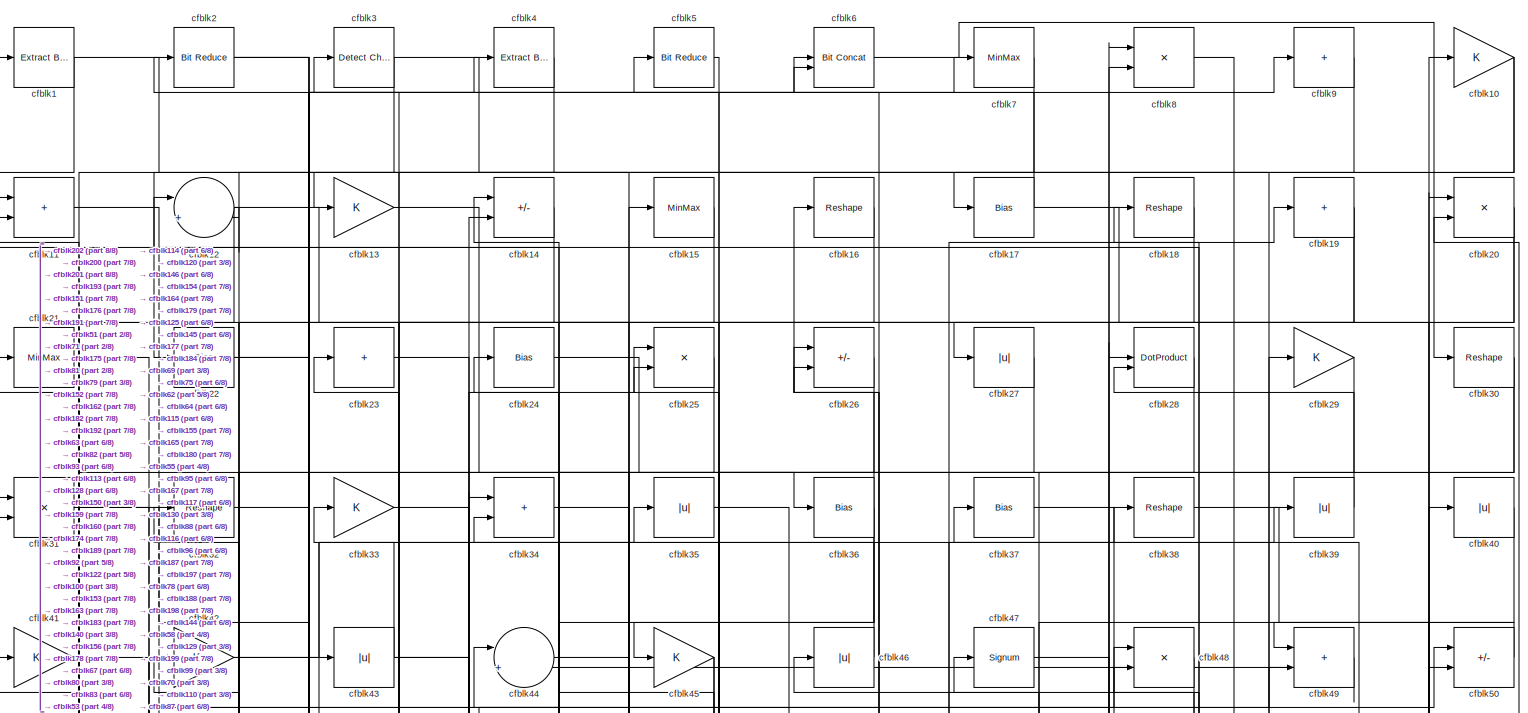
[diagram: root canvas - part 1/8, full width, top band]
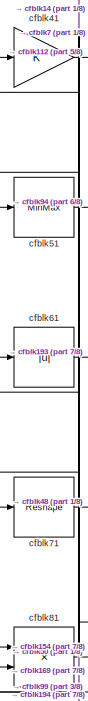
[diagram: root canvas - part 2/8, top left region]
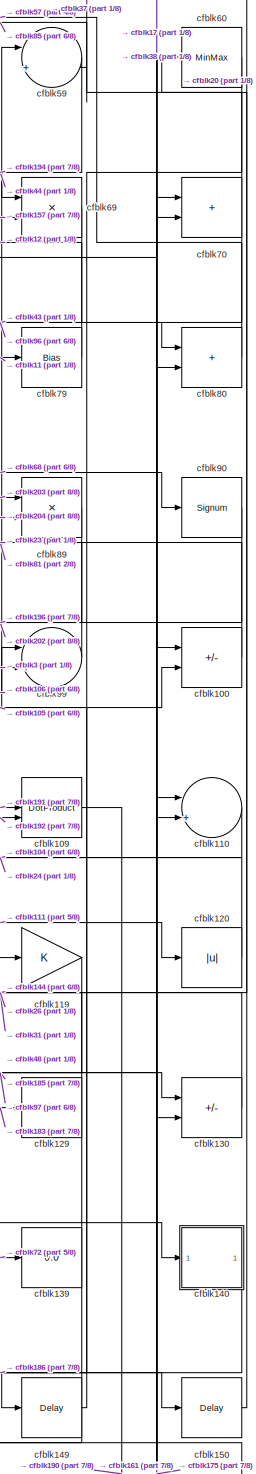
[diagram: root canvas - part 3/8, middle right region]
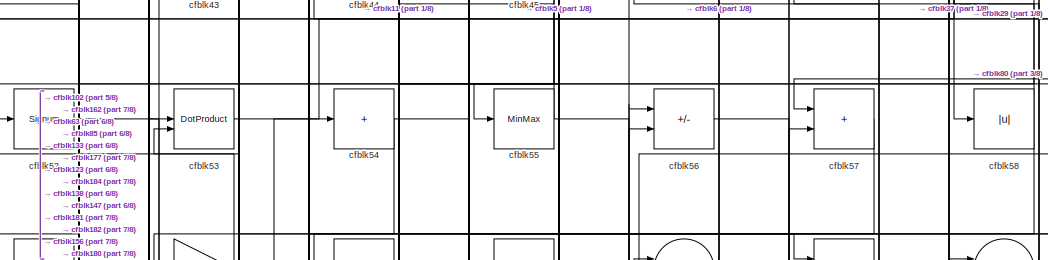
[diagram: root canvas - part 4/8, top center region]
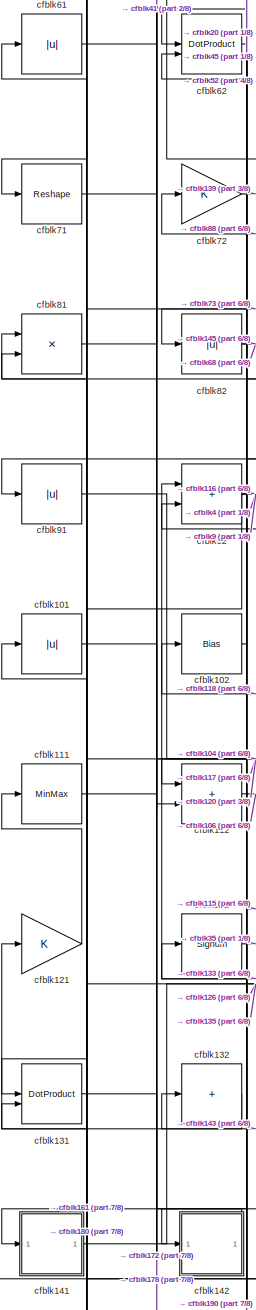
[diagram: root canvas - part 5/8, middle left region]
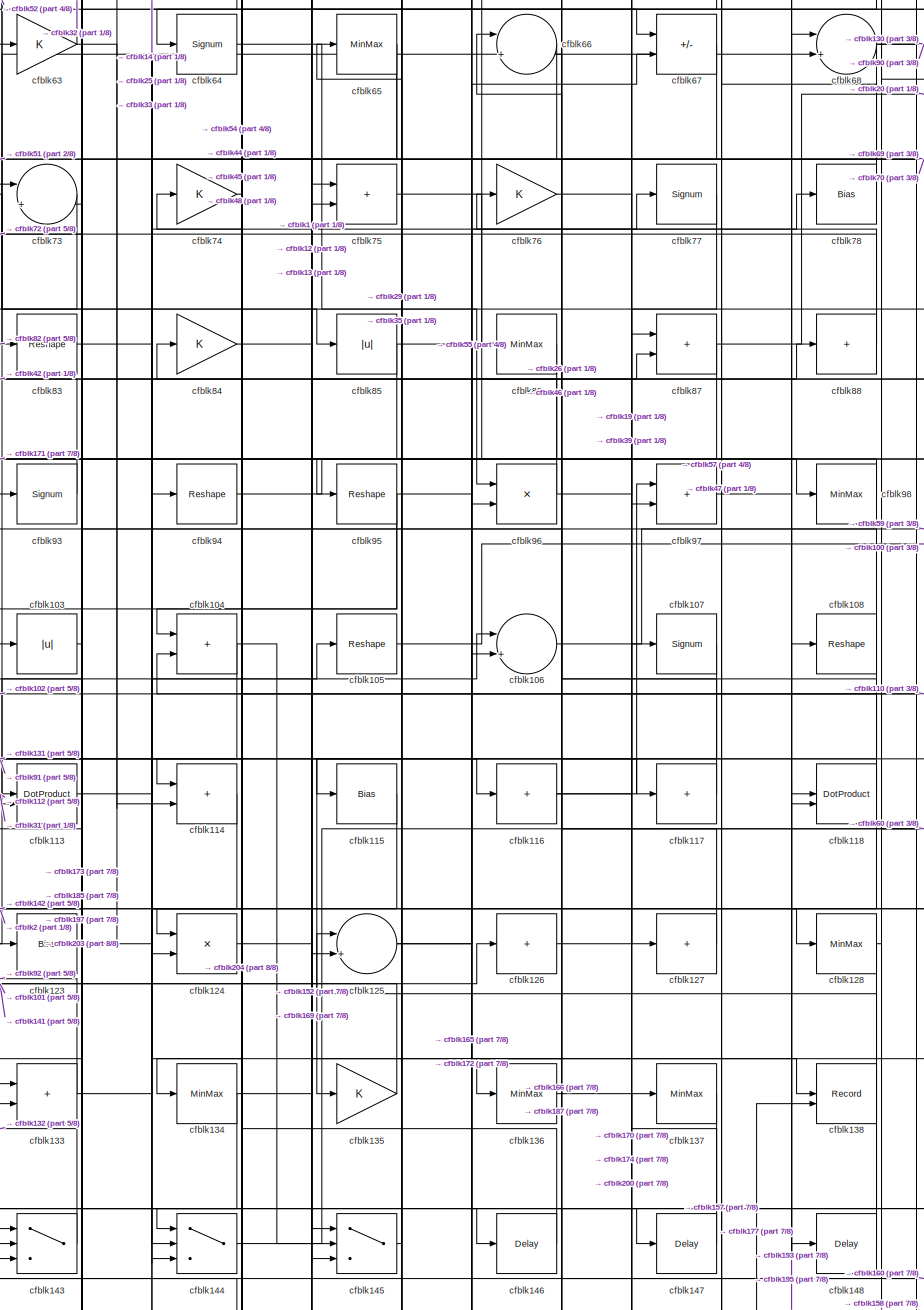
[diagram: root canvas - part 6/8, central region]
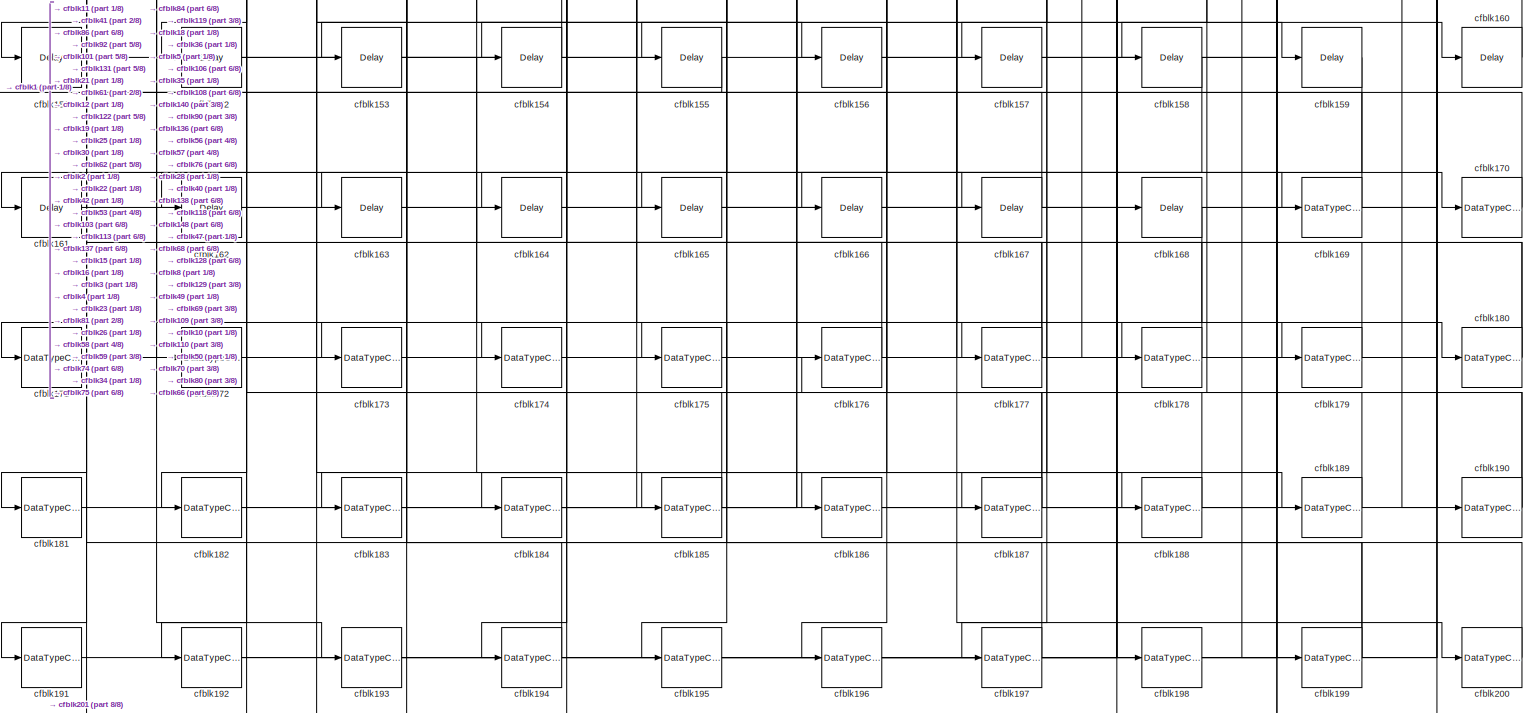
[diagram: root canvas - part 7/8, full width, bottom band]
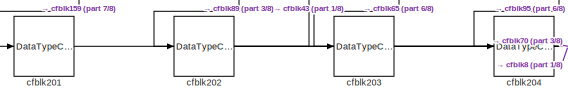
[diagram: root canvas - part 8/8, bottom left region]
MODEL slx_c1be3efe6a10
KIND model
CONFIG AbsTol = auto
CONFIG EnableMultiTasking = off
CONFIG FixedStep = auto
CONFIG MaxStep = auto
CONFIG MinStep = auto
CONFIG RelTol = 1e-3
CONFIG SampleTimeConstraint = Unconstrained
CONFIG SolverName = VariableStepAuto
CONFIG StartTime = 0.0
CONFIG StopTime = 10.0
BLOCK [Reference] cfblk1  REF=simulink/Logic and Bit
Operations/Extract Bits
  LibrarySourceBlock = hdlsllib/Logic and Bit\nOperations/Extract Bits
  SourceBlock = simulink/Logic and Bit\nOperations/Extract Bits
  SourceType = Extract Bits
BLOCK [Gain] cfblk10
BLOCK [Sum] cfblk100
  IconShape = rectangular
  Inputs = +-
BLOCK [Abs] cfblk101
  SaturateOnIntegerOverflow = off
BLOCK [Bias] cfblk102
  Bias = 0.0
  SaturateOnIntegerOverflow = off
BLOCK [Abs] cfblk103
  SaturateOnIntegerOverflow = off
BLOCK [Sum] cfblk104
  IconShape = rectangular
BLOCK [Reshape] cfblk105
BLOCK [Sum] cfblk106
  Inputs = |++
BLOCK [Signum] cfblk107
BLOCK [Reshape] cfblk108
BLOCK [DotProduct] cfblk109
  OutDataTypeStr = Inherit: Inherit via internal rule
BLOCK [Sum] cfblk11
  IconShape = rectangular
BLOCK [Sum] cfblk110
  Inputs = |++
BLOCK [MinMax] cfblk111
BLOCK [Sum] cfblk112
  IconShape = rectangular
BLOCK [DotProduct] cfblk113
  OutDataTypeStr = Inherit: Inherit via internal rule
BLOCK [Sum] cfblk114
  IconShape = rectangular
BLOCK [Bias] cfblk115
  Bias = 0.0
  SaturateOnIntegerOverflow = off
BLOCK [Sum] cfblk116
  IconShape = rectangular
  Inputs = +
BLOCK [Sum] cfblk117
  IconShape = rectangular
  Inputs = +
BLOCK [DotProduct] cfblk118
  OutDataTypeStr = Inherit: Inherit via internal rule
BLOCK [Gain] cfblk119
BLOCK [Sum] cfblk12
  Inputs = |++
BLOCK [Abs] cfblk120
  SaturateOnIntegerOverflow = off
BLOCK [Gain] cfblk121
BLOCK [Signum] cfblk122
BLOCK [Bias] cfblk123
  Bias = 0.0
  SaturateOnIntegerOverflow = off
BLOCK [Product] cfblk124
  Inputs = */
  RndMeth = Zero
  SaturateOnIntegerOverflow = on
BLOCK [Sum] cfblk125
  Inputs = |++
BLOCK [Sum] cfblk126
  IconShape = rectangular
  Inputs = +
BLOCK [Sum] cfblk127
  IconShape = rectangular
  Inputs = +
BLOCK [MinMax] cfblk128
BLOCK [Bias] cfblk129
  Bias = 0.0
  SaturateOnIntegerOverflow = off
BLOCK [Gain] cfblk13
BLOCK [Sum] cfblk130
  IconShape = rectangular
  Inputs = +-
BLOCK [DotProduct] cfblk131
  OutDataTypeStr = Inherit: Inherit via internal rule
BLOCK [Sum] cfblk132
  IconShape = rectangular
  Inputs = +
BLOCK [Sum] cfblk133
  IconShape = rectangular
BLOCK [MinMax] cfblk134
BLOCK [Gain] cfblk135
BLOCK [MinMax] cfblk136
BLOCK [MinMax] cfblk137
BLOCK [Record] cfblk138
  CompatibilityTag = XY
  FileSettingsInternal = {"entries":[{"content":{"excelSettings":{"content":{},"type":"Streamout.ExcelSettings"}},"type":"Streamout.FileSettingStorage","uuid":""}],"packageUris":["http:\/\/schema.mathworks.com\/mf0\/streamout_blocks\/R2020a"],"version":"1.0"}
  Layout = [1 1]
  SignalsInternal = {"entries":[{"content":{"signals":[{"content":{"blockPath":[],"dimensions":[1],"domain":"","lineColor":"#a2142f","plots":[1],"port":1,"signalID":5620,"signalName":"XY Graph:1"},"type":"RecordBlkView.Signal","uuid":""},{"content":{"blockPath":[],"dimensions":[1],"domain":"","lineColor":"#139fff","plots":[1],"port":2,"signalID":5623,"signalName":"XY Graph:2"},"type":"RecordBlkView.Signal","uuid":""}...<+146ch>
  VisualizationBindings = {"xyplotplugin":{"info":[{"series":[{"bindingParametersList":[{"parameter":"X-Axis","signalID":5620,"signalName":"XY Graph:1"},{"parameter":"Y-Axis","signalID":5623,"signalName":"XY Graph:2"}],"seriesID":47147}],"subplotID":1}]}}
  st = -1
BLOCK [Display] cfblk139
  Decimation = 1
BLOCK [Sum] cfblk14
  IconShape = rectangular
  Inputs = +-
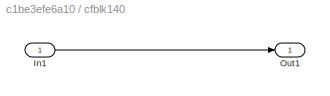
BLOCK [SubSystem] cfblk140
  LibrarySourceBlock = hdlsllib/Ports &\nSubsystems/Subsystem
BLOCK [Inport] cfblk140/In1
BLOCK [Outport] cfblk140/Out1
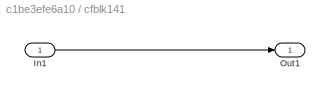
BLOCK [SubSystem] cfblk141
  LibrarySourceBlock = hdlsllib/Ports &\nSubsystems/Subsystem
BLOCK [Inport] cfblk141/In1
BLOCK [Outport] cfblk141/Out1
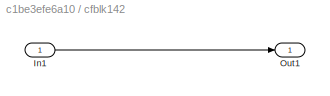
BLOCK [SubSystem] cfblk142
  LibrarySourceBlock = hdlsllib/Ports &\nSubsystems/Subsystem
BLOCK [Inport] cfblk142/In1
BLOCK [Outport] cfblk142/Out1
BLOCK [Switch] cfblk143
  InputSameDT = off
  SaturateOnIntegerOverflow = off
BLOCK [Switch] cfblk144
  InputSameDT = off
  SaturateOnIntegerOverflow = off
BLOCK [Switch] cfblk145
  InputSameDT = off
  SaturateOnIntegerOverflow = off
BLOCK [Delay] cfblk146
  InputPortMap = u0
  SampleTime = 1
BLOCK [Delay] cfblk147
  InputPortMap = u0
  SampleTime = 1
BLOCK [Delay] cfblk148
  InputPortMap = u0
  SampleTime = 1
BLOCK [Delay] cfblk149
  InputPortMap = u0
  SampleTime = 1
BLOCK [MinMax] cfblk15
BLOCK [Delay] cfblk150
  InputPortMap = u0
  SampleTime = 1
BLOCK [Delay] cfblk151
  InputPortMap = u0
  SampleTime = 1
BLOCK [Delay] cfblk152
  InputPortMap = u0
  SampleTime = 1
BLOCK [Delay] cfblk153
  InputPortMap = u0
  SampleTime = 1
BLOCK [Delay] cfblk154
  InputPortMap = u0
  SampleTime = 1
BLOCK [Delay] cfblk155
  InputPortMap = u0
  SampleTime = 1
BLOCK [Delay] cfblk156
  InputPortMap = u0
  SampleTime = 1
BLOCK [Delay] cfblk157
  InputPortMap = u0
  SampleTime = 1
BLOCK [Delay] cfblk158
  InputPortMap = u0
  SampleTime = 1
BLOCK [Delay] cfblk159
  InputPortMap = u0
  SampleTime = 1
BLOCK [Reshape] cfblk16
BLOCK [Delay] cfblk160
  InputPortMap = u0
  SampleTime = 1
BLOCK [Delay] cfblk161
  InputPortMap = u0
  SampleTime = 1
BLOCK [Delay] cfblk162
  InputPortMap = u0
  SampleTime = 1
BLOCK [Delay] cfblk163
  InputPortMap = u0
  SampleTime = 1
BLOCK [Delay] cfblk164
  InputPortMap = u0
  SampleTime = 1
BLOCK [Delay] cfblk165
  InputPortMap = u0
  SampleTime = 1
BLOCK [Delay] cfblk166
  InputPortMap = u0
  SampleTime = 1
BLOCK [Delay] cfblk167
  InputPortMap = u0
  SampleTime = 1
BLOCK [Delay] cfblk168
  InputPortMap = u0
  SampleTime = 1
BLOCK [DataTypeConversion] cfblk169
  OutDataTypeStr = uint8
  RndMeth = Floor
  SaturateOnIntegerOverflow = off
BLOCK [Bias] cfblk17
  Bias = 0.0
  SaturateOnIntegerOverflow = off
BLOCK [DataTypeConversion] cfblk170
  OutDataTypeStr = uint8
  RndMeth = Floor
  SaturateOnIntegerOverflow = off
BLOCK [DataTypeConversion] cfblk171
  OutDataTypeStr = uint8
  RndMeth = Floor
  SaturateOnIntegerOverflow = off
BLOCK [DataTypeConversion] cfblk172
  OutDataTypeStr = uint8
  RndMeth = Floor
  SaturateOnIntegerOverflow = off
BLOCK [DataTypeConversion] cfblk173
  OutDataTypeStr = uint8
  RndMeth = Floor
  SaturateOnIntegerOverflow = off
BLOCK [DataTypeConversion] cfblk174
  OutDataTypeStr = uint8
  RndMeth = Floor
  SaturateOnIntegerOverflow = off
BLOCK [DataTypeConversion] cfblk175
  OutDataTypeStr = uint8
  RndMeth = Floor
  SaturateOnIntegerOverflow = off
BLOCK [DataTypeConversion] cfblk176
  OutDataTypeStr = uint8
  RndMeth = Floor
  SaturateOnIntegerOverflow = off
BLOCK [DataTypeConversion] cfblk177
  RndMeth = Floor
  SaturateOnIntegerOverflow = off
BLOCK [DataTypeConversion] cfblk178
  OutDataTypeStr = uint8
  RndMeth = Floor
  SaturateOnIntegerOverflow = off
BLOCK [DataTypeConversion] cfblk179
  OutDataTypeStr = uint8
  RndMeth = Floor
  SaturateOnIntegerOverflow = off
BLOCK [Reshape] cfblk18
BLOCK [DataTypeConversion] cfblk180
  RndMeth = Floor
  SaturateOnIntegerOverflow = off
BLOCK [DataTypeConversion] cfblk181
  OutDataTypeStr = uint8
  RndMeth = Floor
  SaturateOnIntegerOverflow = off
BLOCK [DataTypeConversion] cfblk182
  OutDataTypeStr = uint8
  RndMeth = Floor
  SaturateOnIntegerOverflow = off
BLOCK [DataTypeConversion] cfblk183
  OutDataTypeStr = uint8
  RndMeth = Floor
  SaturateOnIntegerOverflow = off
BLOCK [DataTypeConversion] cfblk184
  OutDataTypeStr = uint8
  RndMeth = Floor
  SaturateOnIntegerOverflow = off
BLOCK [DataTypeConversion] cfblk185
  RndMeth = Floor
  SaturateOnIntegerOverflow = off
BLOCK [DataTypeConversion] cfblk186
  OutDataTypeStr = uint8
  RndMeth = Floor
  SaturateOnIntegerOverflow = off
BLOCK [DataTypeConversion] cfblk187
  RndMeth = Floor
  SaturateOnIntegerOverflow = off
BLOCK [DataTypeConversion] cfblk188
  OutDataTypeStr = uint8
  RndMeth = Floor
  SaturateOnIntegerOverflow = off
BLOCK [DataTypeConversion] cfblk189
  OutDataTypeStr = uint8
  RndMeth = Floor
  SaturateOnIntegerOverflow = off
BLOCK [Sum] cfblk19
  IconShape = rectangular
  Inputs = +
BLOCK [DataTypeConversion] cfblk190
  RndMeth = Floor
  SaturateOnIntegerOverflow = off
BLOCK [DataTypeConversion] cfblk191
  OutDataTypeStr = uint8
  RndMeth = Floor
  SaturateOnIntegerOverflow = off
BLOCK [DataTypeConversion] cfblk192
  OutDataTypeStr = uint8
  RndMeth = Floor
  SaturateOnIntegerOverflow = off
BLOCK [DataTypeConversion] cfblk193
  RndMeth = Floor
  SaturateOnIntegerOverflow = off
BLOCK [DataTypeConversion] cfblk194
  OutDataTypeStr = uint8
  RndMeth = Floor
  SaturateOnIntegerOverflow = off
BLOCK [DataTypeConversion] cfblk195
  OutDataTypeStr = uint8
  RndMeth = Floor
  SaturateOnIntegerOverflow = off
BLOCK [DataTypeConversion] cfblk196
  OutDataTypeStr = uint8
  RndMeth = Floor
  SaturateOnIntegerOverflow = off
BLOCK [DataTypeConversion] cfblk197
  OutDataTypeStr = uint8
  RndMeth = Floor
  SaturateOnIntegerOverflow = off
BLOCK [DataTypeConversion] cfblk198
  OutDataTypeStr = uint8
  RndMeth = Floor
  SaturateOnIntegerOverflow = off
BLOCK [DataTypeConversion] cfblk199
  RndMeth = Floor
  SaturateOnIntegerOverflow = off
BLOCK [Reference] cfblk2  REF=hdlsllib/Logic and Bit
Operations/Bit Reduce
  SourceBlock = hdlsllib/Logic and Bit\nOperations/Bit Reduce
  SourceType = Bit Reduce
BLOCK [Product] cfblk20
  Inputs = */
  RndMeth = Zero
  SaturateOnIntegerOverflow = on
BLOCK [DataTypeConversion] cfblk200
  OutDataTypeStr = uint8
  RndMeth = Floor
  SaturateOnIntegerOverflow = off
BLOCK [DataTypeConversion] cfblk201
  OutDataTypeStr = uint8
  RndMeth = Floor
  SaturateOnIntegerOverflow = off
BLOCK [DataTypeConversion] cfblk202
  RndMeth = Floor
  SaturateOnIntegerOverflow = off
BLOCK [DataTypeConversion] cfblk203
  OutDataTypeStr = uint8
  RndMeth = Floor
  SaturateOnIntegerOverflow = off
BLOCK [DataTypeConversion] cfblk204
  OutDataTypeStr = uint8
  RndMeth = Floor
  SaturateOnIntegerOverflow = off
BLOCK [MinMax] cfblk21
BLOCK [Bias] cfblk22
  Bias = 0.0
  SaturateOnIntegerOverflow = off
BLOCK [Sum] cfblk23
  IconShape = rectangular
  Inputs = +
BLOCK [Bias] cfblk24
  Bias = 0.0
  SaturateOnIntegerOverflow = off
BLOCK [Product] cfblk25
  Inputs = */
  RndMeth = Zero
  SaturateOnIntegerOverflow = on
BLOCK [Sum] cfblk26
  IconShape = rectangular
  Inputs = +-
BLOCK [Abs] cfblk27
  SaturateOnIntegerOverflow = off
BLOCK [DotProduct] cfblk28
  OutDataTypeStr = Inherit: Inherit via internal rule
BLOCK [Gain] cfblk29
BLOCK [Reference] cfblk3  REF=simulink/Logic and Bit
Operations/Detect
Change
  LibrarySourceBlock = hdlsllib/Logic and Bit\nOperations/Detect\nChange
  SourceBlock = simulink/Logic and Bit\nOperations/Detect\nChange
  SourceType = Detect Change
BLOCK [Reshape] cfblk30
BLOCK [Product] cfblk31
  Inputs = */
  RndMeth = Zero
  SaturateOnIntegerOverflow = on
BLOCK [Reshape] cfblk32
BLOCK [Gain] cfblk33
BLOCK [Sum] cfblk34
  IconShape = rectangular
BLOCK [Abs] cfblk35
  SaturateOnIntegerOverflow = off
BLOCK [Bias] cfblk36
  Bias = 0.0
  SaturateOnIntegerOverflow = off
BLOCK [Bias] cfblk37
  Bias = 0.0
  SaturateOnIntegerOverflow = off
BLOCK [Reshape] cfblk38
BLOCK [Abs] cfblk39
  SaturateOnIntegerOverflow = off
BLOCK [Reference] cfblk4  REF=simulink/Logic and Bit
Operations/Extract Bits
  LibrarySourceBlock = hdlsllib/Logic and Bit\nOperations/Extract Bits
  SourceBlock = simulink/Logic and Bit\nOperations/Extract Bits
  SourceType = Extract Bits
BLOCK [Abs] cfblk40
  SaturateOnIntegerOverflow = off
BLOCK [Gain] cfblk41
BLOCK [Gain] cfblk42
BLOCK [Abs] cfblk43
  SaturateOnIntegerOverflow = off
BLOCK [Sum] cfblk44
  Inputs = |++
BLOCK [Gain] cfblk45
BLOCK [Abs] cfblk46
  SaturateOnIntegerOverflow = off
BLOCK [Signum] cfblk47
BLOCK [Product] cfblk48
  Inputs = */
  RndMeth = Zero
  SaturateOnIntegerOverflow = on
BLOCK [Sum] cfblk49
  IconShape = rectangular
BLOCK [Reference] cfblk5  REF=hdlsllib/Logic and Bit
Operations/Bit Reduce
  SourceBlock = hdlsllib/Logic and Bit\nOperations/Bit Reduce
  SourceType = Bit Reduce
BLOCK [Sum] cfblk50
  IconShape = rectangular
  Inputs = +-
BLOCK [MinMax] cfblk51
BLOCK [Signum] cfblk52
BLOCK [DotProduct] cfblk53
  OutDataTypeStr = Inherit: Inherit via internal rule
BLOCK [Sum] cfblk54
  IconShape = rectangular
  Inputs = +
BLOCK [MinMax] cfblk55
BLOCK [Sum] cfblk56
  IconShape = rectangular
  Inputs = +-
BLOCK [Sum] cfblk57
  IconShape = rectangular
BLOCK [Abs] cfblk58
  SaturateOnIntegerOverflow = off
BLOCK [Sum] cfblk59
  Inputs = |++
BLOCK [Reference] cfblk6  REF=hdlsllib/Logic and Bit
Operations/Bit Concat
  SourceBlock = hdlsllib/Logic and Bit\nOperations/Bit Concat
  SourceType = Bit Concat
BLOCK [MinMax] cfblk60
BLOCK [Abs] cfblk61
  SaturateOnIntegerOverflow = off
BLOCK [DotProduct] cfblk62
  OutDataTypeStr = Inherit: Inherit via internal rule
BLOCK [Gain] cfblk63
BLOCK [Signum] cfblk64
BLOCK [MinMax] cfblk65
BLOCK [Sum] cfblk66
  Inputs = |++
BLOCK [Sum] cfblk67
  IconShape = rectangular
  Inputs = +-
BLOCK [Sum] cfblk68
  Inputs = |++
BLOCK [Product] cfblk69
  Inputs = */
  RndMeth = Zero
  SaturateOnIntegerOverflow = on
BLOCK [MinMax] cfblk7
BLOCK [Sum] cfblk70
  IconShape = rectangular
BLOCK [Reshape] cfblk71
BLOCK [Gain] cfblk72
BLOCK [Sum] cfblk73
  Inputs = |++
BLOCK [Gain] cfblk74
BLOCK [Sum] cfblk75
  IconShape = rectangular
BLOCK [Gain] cfblk76
BLOCK [Signum] cfblk77
BLOCK [Bias] cfblk78
  Bias = 0.0
  SaturateOnIntegerOverflow = off
BLOCK [Bias] cfblk79
  Bias = 0.0
  SaturateOnIntegerOverflow = off
BLOCK [Product] cfblk8
  Inputs = */
  RndMeth = Zero
  SaturateOnIntegerOverflow = on
BLOCK [Sum] cfblk80
  IconShape = rectangular
BLOCK [Product] cfblk81
  Inputs = */
  RndMeth = Zero
  SaturateOnIntegerOverflow = on
BLOCK [Abs] cfblk82
  SaturateOnIntegerOverflow = off
BLOCK [Reshape] cfblk83
BLOCK [Gain] cfblk84
BLOCK [Abs] cfblk85
  SaturateOnIntegerOverflow = off
BLOCK [MinMax] cfblk86
BLOCK [Sum] cfblk87
  IconShape = rectangular
BLOCK [Sum] cfblk88
  IconShape = rectangular
  Inputs = +
BLOCK [Product] cfblk89
  Inputs = */
  RndMeth = Zero
  SaturateOnIntegerOverflow = on
BLOCK [Sum] cfblk9
  IconShape = rectangular
  Inputs = +
BLOCK [Signum] cfblk90
BLOCK [Abs] cfblk91
  SaturateOnIntegerOverflow = off
BLOCK [Sum] cfblk92
  IconShape = rectangular
BLOCK [Signum] cfblk93
BLOCK [Reshape] cfblk94
BLOCK [Reshape] cfblk95
BLOCK [Product] cfblk96
  Inputs = */
  RndMeth = Zero
  SaturateOnIntegerOverflow = on
BLOCK [Sum] cfblk97
  IconShape = rectangular
BLOCK [MinMax] cfblk98
BLOCK [Sum] cfblk99
  Inputs = |++
LINE cfblk100:1 -> cfblk23:1
LINE cfblk101:1 -> cfblk172:1
LINE cfblk102:1 -> cfblk52:1
LINE cfblk103:1 -> cfblk83:1
NET cfblk104:1 -> cfblk131:1, cfblk145:2
LINE cfblk105:1 -> cfblk100:2
LINE cfblk106:1 -> cfblk59:1
LINE cfblk107:1 -> cfblk135:1
NET cfblk108:1 -> cfblk166:1, cfblk73:2
LINE cfblk109:1 -> cfblk190:1
NET cfblk10:1 -> cfblk13:1, cfblk22:1
LINE cfblk110:1 -> cfblk104:2
LINE cfblk111:1 -> cfblk120:1
LINE cfblk112:1 -> cfblk106:1
LINE cfblk113:1 -> cfblk14:2
LINE cfblk114:1 -> cfblk124:2
LINE cfblk115:1 -> cfblk142:1
NET cfblk116:1 -> cfblk39:1, cfblk97:1
LINE cfblk117:1 -> cfblk46:1
NET cfblk118:1 -> cfblk102:1, cfblk144:3, cfblk92:2
LINE cfblk119:1 -> cfblk185:1
LINE cfblk11:1 -> cfblk79:1
LINE cfblk120:1 -> cfblk24:1
LINE cfblk121:1 -> cfblk111:1
LINE cfblk122:1 -> cfblk35:1
NET cfblk123:1 -> cfblk105:1, cfblk54:1
LINE cfblk124:1 -> cfblk146:1
NET cfblk125:1 -> cfblk67:2, cfblk87:2
LINE cfblk126:1 -> cfblk107:1
LINE cfblk127:1 -> cfblk76:1
NET cfblk128:1 -> cfblk157:1, cfblk158:1
NET cfblk129:1 -> cfblk31:1, cfblk48:2
NET cfblk12:1 -> cfblk191:1, cfblk192:1, cfblk75:1
LINE cfblk130:1 -> cfblk26:1
LINE cfblk131:1 -> cfblk178:1
LINE cfblk132:1 -> cfblk121:1
NET cfblk133:1 -> cfblk78:1, cfblk92:1
NET cfblk134:1 -> cfblk143:1, cfblk88:1
LINE cfblk135:1 -> cfblk101:1
LINE cfblk136:1 -> cfblk200:1
LINE cfblk137:1 -> cfblk173:1
LINE cfblk13:1 -> cfblk145:1
LINE cfblk140/In1:1 -> cfblk140/Out1:1
LINE cfblk140:1 -> cfblk186:1
LINE cfblk141/In1:1 -> cfblk141/Out1:1
LINE cfblk141:1 -> cfblk126:1
LINE cfblk142/In1:1 -> cfblk142/Out1:1
LINE cfblk142:1 -> cfblk141:1
LINE cfblk143:1 -> cfblk132:1
LINE cfblk144:1 -> cfblk60:1
LINE cfblk145:1 -> cfblk65:1
LINE cfblk146:1 -> cfblk44:1
LINE cfblk147:1 -> cfblk87:1
LINE cfblk148:1 -> cfblk125:1
LINE cfblk149:1 -> cfblk99:1
LINE cfblk14:1 -> cfblk71:1
LINE cfblk150:1 -> cfblk20:2
LINE cfblk151:1 -> cfblk49:2
LINE cfblk152:1 -> cfblk75:2
LINE cfblk153:1 -> cfblk179:1
LINE cfblk154:1 -> cfblk81:2
LINE cfblk155:1 -> cfblk1:1
LINE cfblk156:1 -> cfblk57:2
LINE cfblk157:1 -> cfblk69:2
LINE cfblk158:1 -> cfblk181:1
LINE cfblk159:1 -> cfblk201:1
LINE cfblk15:1 -> cfblk183:1
LINE cfblk160:1 -> cfblk66:2
LINE cfblk161:1 -> cfblk80:2
LINE cfblk162:1 -> cfblk53:1
LINE cfblk163:1 -> cfblk188:1
LINE cfblk164:1 -> cfblk50:2
LINE cfblk165:1 -> cfblk106:2
LINE cfblk166:1 -> cfblk118:2
LINE cfblk167:1 -> cfblk11:2
LINE cfblk168:1 -> cfblk195:1
LINE cfblk169:1 -> cfblk41:1
LINE cfblk16:1 -> cfblk163:1
LINE cfblk170:1 -> cfblk84:1
LINE cfblk171:1 -> cfblk118:1
LINE cfblk172:1 -> cfblk86:1
LINE cfblk173:1 -> cfblk108:1
LINE cfblk174:1 -> cfblk137:1
LINE cfblk175:1 -> cfblk110:1
LINE cfblk176:1 -> cfblk21:1
NET cfblk177:1 -> cfblk138:2, cfblk53:2, cfblk74:1
LINE cfblk178:1 -> cfblk34:1
LINE cfblk179:1 -> cfblk34:2
NET cfblk17:1 -> cfblk100:1, cfblk2:1
NET cfblk180:1 -> cfblk131:2, cfblk5:1
LINE cfblk181:1 -> cfblk56:1
LINE cfblk182:1 -> cfblk56:2
LINE cfblk183:1 -> cfblk129:1
LINE cfblk184:1 -> cfblk15:1
NET cfblk185:1 -> cfblk113:2, cfblk70:1
LINE cfblk186:1 -> cfblk119:1
NET cfblk187:1 -> cfblk176:1, cfblk66:1
LINE cfblk188:1 -> cfblk28:1
LINE cfblk189:1 -> cfblk28:2
LINE cfblk18:1 -> cfblk155:1
NET cfblk190:1 -> cfblk122:1, cfblk62:2
LINE cfblk191:1 -> cfblk109:1
LINE cfblk192:1 -> cfblk109:2
NET cfblk193:1 -> cfblk10:1, cfblk148:1
LINE cfblk194:1 -> cfblk61:1
LINE cfblk195:1 -> cfblk68:1
LINE cfblk196:1 -> cfblk168:1
LINE cfblk197:1 -> cfblk103:1
LINE cfblk198:1 -> cfblk40:1
NET cfblk199:1 -> cfblk25:2, cfblk3:1
NET cfblk19:1 -> cfblk114:1, cfblk182:1
NET cfblk1:1 -> cfblk125:2, cfblk31:2
LINE cfblk200:1 -> cfblk8:1
LINE cfblk201:1 -> cfblk8:2
NET cfblk202:1 -> cfblk43:1, cfblk70:2
LINE cfblk203:1 -> cfblk89:1
LINE cfblk204:1 -> cfblk89:2
NET cfblk20:1 -> cfblk27:1, cfblk82:1
LINE cfblk21:1 -> cfblk175:1
NET cfblk22:1 -> cfblk189:1, cfblk6:1
LINE cfblk23:1 -> cfblk156:1
LINE cfblk24:1 -> cfblk36:1
LINE cfblk25:1 -> cfblk162:1
LINE cfblk26:1 -> cfblk154:1
LINE cfblk27:1 -> cfblk45:1
LINE cfblk28:1 -> cfblk187:1
LINE cfblk29:1 -> cfblk95:1
NET cfblk2:1 -> cfblk128:1, cfblk159:1, cfblk160:1
NET cfblk30:1 -> cfblk151:1, cfblk152:1
NET cfblk31:1 -> cfblk113:1, cfblk150:1
LINE cfblk32:1 -> cfblk7:1
LINE cfblk33:1 -> cfblk67:1
LINE cfblk34:1 -> cfblk177:1
NET cfblk35:1 -> cfblk115:1, cfblk167:1
NET cfblk36:1 -> cfblk164:1, cfblk165:1, cfblk16:1
LINE cfblk37:1 -> cfblk58:1
LINE cfblk38:1 -> cfblk110:2
LINE cfblk39:1 -> cfblk18:1
NET cfblk3:1 -> cfblk12:2, cfblk99:2
LINE cfblk40:1 -> cfblk197:1
LINE cfblk41:1 -> cfblk112:2
NET cfblk42:1 -> cfblk174:1, cfblk38:1
NET cfblk43:1 -> cfblk140:1, cfblk33:1, cfblk80:1
LINE cfblk44:1 -> cfblk69:1
NET cfblk45:1 -> cfblk62:1, cfblk64:1
LINE cfblk46:1 -> cfblk14:1
LINE cfblk47:1 -> cfblk198:1
LINE cfblk48:1 -> cfblk144:1
LINE cfblk49:1 -> cfblk44:2
LINE cfblk4:1 -> cfblk153:1
LINE cfblk50:1 -> cfblk49:1
LINE cfblk51:1 -> cfblk94:1
LINE cfblk52:1 -> cfblk85:1
LINE cfblk53:1 -> cfblk29:1
NET cfblk54:1 -> cfblk138:1, cfblk63:1
NET cfblk55:1 -> cfblk11:1, cfblk147:1
LINE cfblk56:1 -> cfblk180:1
LINE cfblk57:1 -> cfblk133:1
NET cfblk58:1 -> cfblk184:1, cfblk6:2
LINE cfblk59:1 -> cfblk194:1
LINE cfblk5:1 -> cfblk55:1
LINE cfblk60:1 -> cfblk149:1
LINE cfblk61:1 -> cfblk193:1
LINE cfblk62:1 -> cfblk112:1
NET cfblk63:1 -> cfblk114:2, cfblk32:1
LINE cfblk64:1 -> cfblk96:1
NET cfblk65:1 -> cfblk143:3, cfblk203:1
LINE cfblk66:1 -> cfblk104:1
LINE cfblk67:1 -> cfblk124:1
NET cfblk68:1 -> cfblk130:2, cfblk136:1, cfblk90:1
LINE cfblk69:1 -> cfblk96:2
LINE cfblk6:1 -> cfblk30:1
NET cfblk70:1 -> cfblk144:2, cfblk37:1
LINE cfblk71:1 -> cfblk48:1
LINE cfblk72:1 -> cfblk139:1
LINE cfblk73:1 -> cfblk91:1
LINE cfblk74:1 -> cfblk134:1
LINE cfblk75:1 -> cfblk127:1
LINE cfblk76:1 -> cfblk170:1
LINE cfblk77:1 -> cfblk97:2
LINE cfblk78:1 -> cfblk47:1
LINE cfblk79:1 -> cfblk12:1
LINE cfblk7:1 -> cfblk51:1
LINE cfblk80:1 -> cfblk57:1
LINE cfblk81:1 -> cfblk50:1
NET cfblk82:1 -> cfblk145:3, cfblk68:2
LINE cfblk83:1 -> cfblk25:1
LINE cfblk84:1 -> cfblk169:1
NET cfblk85:1 -> cfblk123:1, cfblk59:2
LINE cfblk86:1 -> cfblk171:1
NET cfblk87:1 -> cfblk143:2, cfblk20:1
NET cfblk88:1 -> cfblk26:2, cfblk72:1
LINE cfblk89:1 -> cfblk202:1
LINE cfblk8:1 -> cfblk199:1
LINE cfblk90:1 -> cfblk196:1
LINE cfblk91:1 -> cfblk117:1
NET cfblk92:1 -> cfblk116:1, cfblk161:1, cfblk4:1, cfblk9:1
LINE cfblk93:1 -> cfblk42:1
LINE cfblk94:1 -> cfblk98:1
NET cfblk95:1 -> cfblk133:2, cfblk204:1, cfblk77:1
NET cfblk96:1 -> cfblk19:1, cfblk73:1
LINE cfblk97:1 -> cfblk130:1
LINE cfblk98:1 -> cfblk93:1
LINE cfblk99:1 -> cfblk81:1
LINE cfblk9:1 -> cfblk17:1
note: NET lines group one-source signal fan-out (src -> all destinations, sorted); 1:1 wires keep LINE
